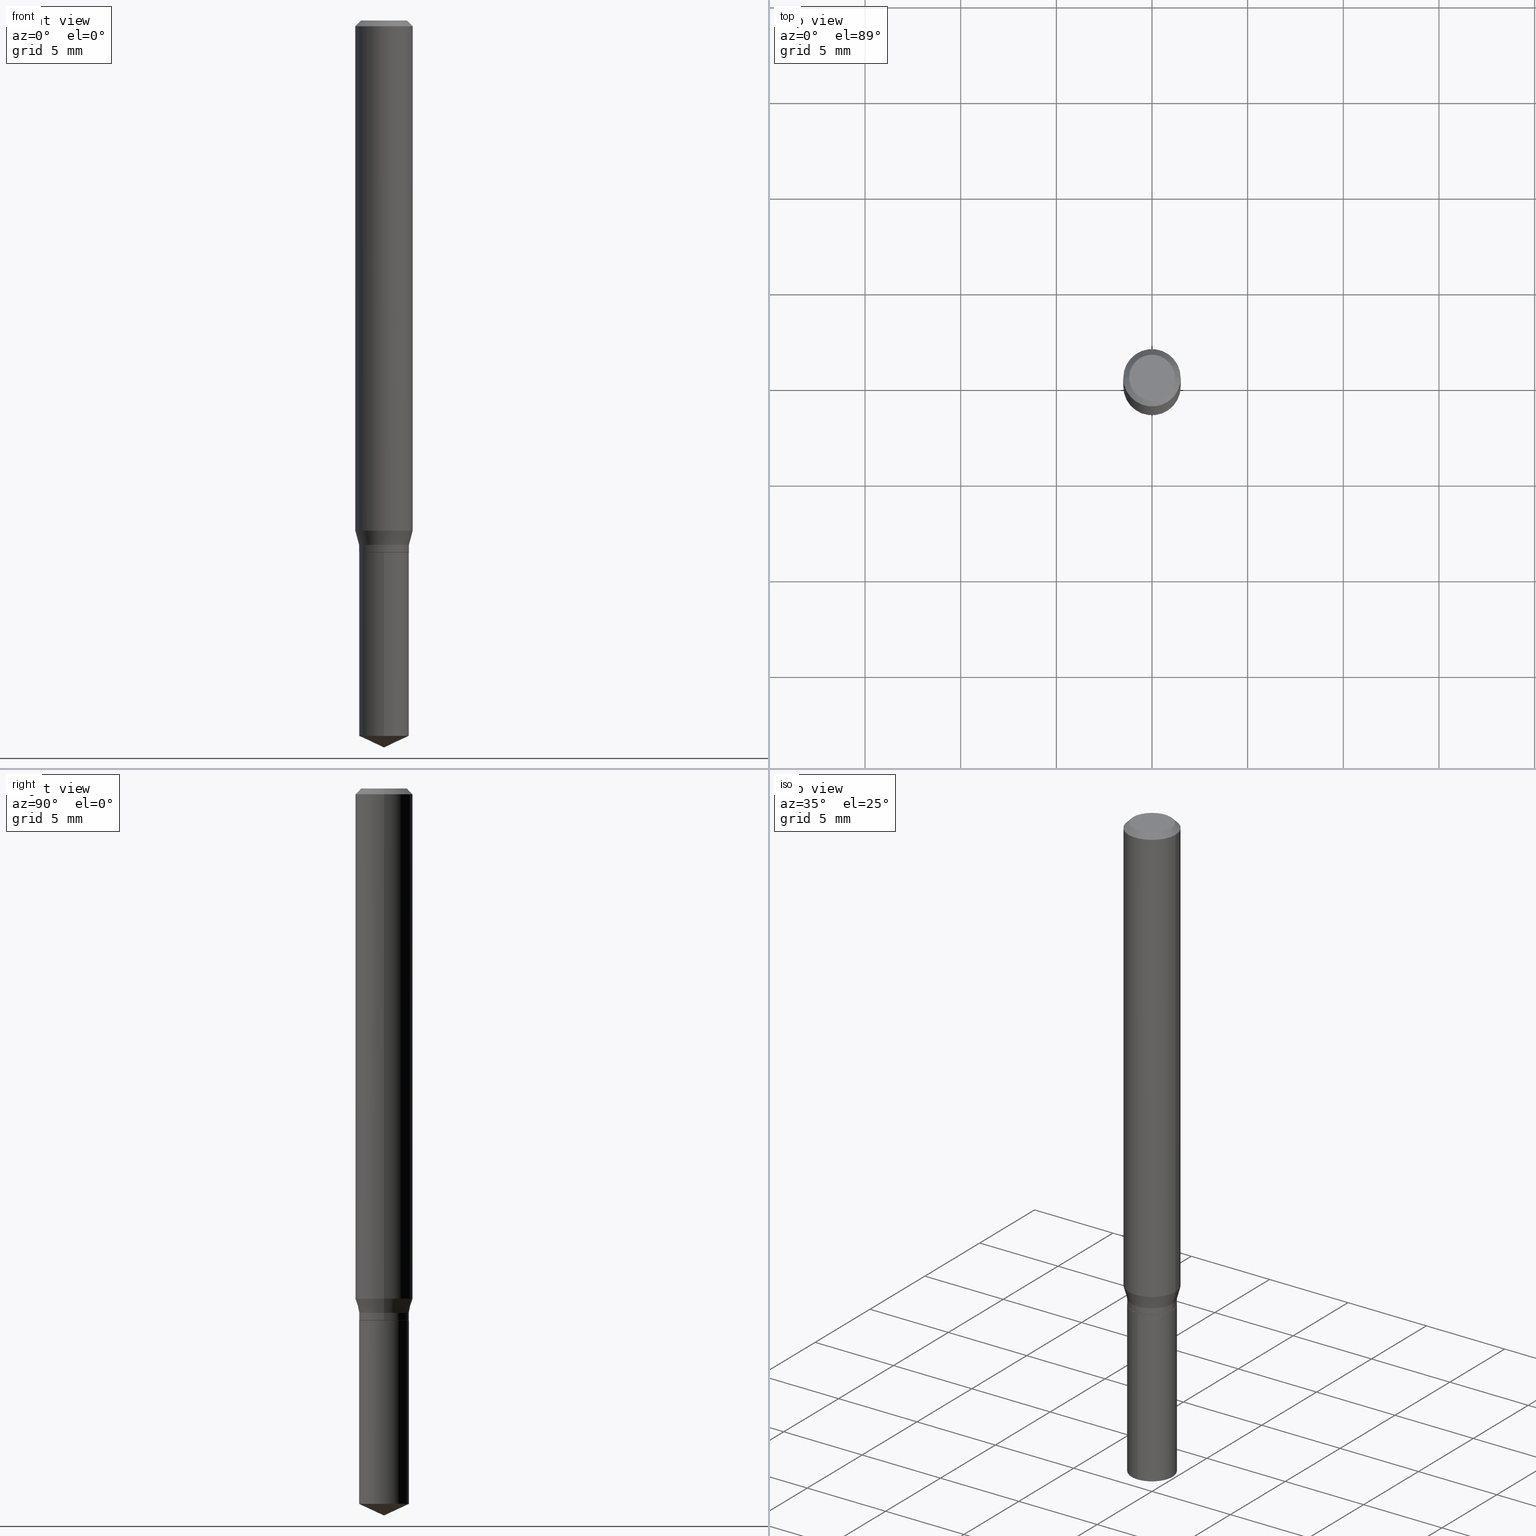
[diagram: canonical four-view strip — front | top / right | iso, engineering-drawing reading convention]
A machine part, canonical four-view strip (front | top / right | iso — engineering-drawing reading convention). The complete STEP part file that produces these views, byte-faithful:
ISO-10303-21;
HEADER;
FILE_DESCRIPTION (( 'STEP AP203' ),
    '1' );
FILE_NAME ('08016.STEP',
    '2024-04-24T08:55:49',
    ( '' ),
    ( '' ),
    'SwSTEP 2.0',
    'SolidWorks 2023',
    '' );
FILE_SCHEMA (( 'CONFIG_CONTROL_DESIGN' ));
ENDSEC;

DATA;
#1 = ORIENTED_EDGE ( 'NONE', *, *, #179, .F. ) ;
#2 = EDGE_CURVE ( 'NONE', #438, #326, #418, .T. ) ;
#3 = VERTEX_POINT ( 'NONE', #79 ) ;
#4 = PERSON_AND_ORGANIZATION ( #169, #90 ) ;
#5 = DIRECTION ( 'NONE',  ( -2.445468806185136597E-29, 3.491481338843145583E-15, 1.000000000000000000 ) ) ;
#6 = CIRCLE ( 'NONE', #488, 0.05904999999999999832 ) ;
#7 = ADVANCED_FACE ( 'NONE', ( #148 ), #306, .T. ) ;
#8 = CARTESIAN_POINT ( 'NONE',  ( 0.05904999999999999832, -4.463468013801466955E-16, -0.01181000000000007218 ) ) ;
#9 = DIRECTION ( 'NONE',  ( -6.982962677686265133E-15, -1.000000000000000000, 2.667820306312756424E-15 ) ) ;
#10 = DIRECTION ( 'NONE',  ( -2.445458899330790108E-29, 3.491495526022433205E-15, 1.000000000000000000 ) ) ;
#11 = AXIS2_PLACEMENT_3D ( 'NONE', #414, #449, #260 ) ;
#12 = LINE ( 'NONE', #156, #165 ) ;
#13 = ORIENTED_EDGE ( 'NONE', *, *, #384, .F. ) ;
#14 = EDGE_CURVE ( 'NONE', #438, #447, #233, .T. ) ;
#15 = DIRECTION ( 'NONE',  ( 1.000000000000000000, -6.982962677686266711E-15, 4.876185090822587894E-29 ) ) ;
#16 = ORIENTED_EDGE ( 'NONE', *, *, #208, .T. ) ;
#17 = DIRECTION ( 'NONE',  ( -2.445468806185136597E-29, 3.491481338843145583E-15, 1.000000000000000000 ) ) ;
#18 = ORIENTED_EDGE ( 'NONE', *, *, #149, .T. ) ;
#19 = PRODUCT ( '08016', '08016', '', ( #300 ) ) ;
#20 = CC_DESIGN_APPROVAL ( #120, ( #134 ) ) ;
#21 = UNCERTAINTY_MEASURE_WITH_UNIT (LENGTH_MEASURE( 1.000000000000000082E-05 ), #39, 'distance_accuracy_value', 'NONE');
#22 = DIRECTION ( 'NONE',  ( -2.445468806185136597E-29, 3.491481338843145583E-15, 1.000000000000000000 ) ) ;
#23 = EDGE_LOOP ( 'NONE', ( #94, #473 ) ) ;
#24 = DIRECTION ( 'NONE',  ( -2.445458899330790108E-29, 3.491495526022433205E-15, 1.000000000000000000 ) ) ;
#25 = ORIENTED_EDGE ( 'NONE', *, *, #49, .F. ) ;
#26 = DIRECTION ( 'NONE',  ( 1.000000000000000000, -6.982962677686263555E-15, 0.000000000000000000 ) ) ;
#27 = ORIENTED_EDGE ( 'NONE', *, *, #43, .T. ) ;
#28 = CONICAL_SURFACE ( 'NONE', #73, 84.42940631927434936, 1.134464013796316006 ) ;
#29 = CARTESIAN_POINT ( 'NONE',  ( 0.000000000000000000, 0.000000000000000000, 0.000000000000000000 ) ) ;
#30 = VERTEX_POINT ( 'NONE', #423 ) ;
#31 = COORDINATED_UNIVERSAL_TIME_OFFSET ( 5, 0, .BEHIND. ) ;
#32 = DIRECTION ( 'NONE',  ( -6.982962677686265133E-15, -1.000000000000000000, 2.667820306312756424E-15 ) ) ;
#33 =( NAMED_UNIT ( * ) SI_UNIT ( $, .STERADIAN. ) SOLID_ANGLE_UNIT ( ) );
#34 = ORIENTED_EDGE ( 'NONE', *, *, #302, .T. ) ;
#35 = CONICAL_SURFACE ( 'NONE', #89, 0.05120000000000000939, 0.2617993877991496299 ) ;
#36 = APPROVAL_STATUS ( 'not_yet_approved' ) ;
#37 = CC_DESIGN_DATE_AND_TIME_ASSIGNMENT ( #71, #180, ( #134 ) ) ;
#38 = PLANE ( 'NONE',  #432 ) ;
#39 =( CONVERSION_BASED_UNIT ( 'INCH', #305 ) LENGTH_UNIT ( ) NAMED_UNIT ( #451 ) );
#40 = DIRECTION ( 'NONE',  ( -2.445458899330790108E-29, 3.491495526022433205E-15, 1.000000000000000000 ) ) ;
#41 = DIRECTION ( 'NONE',  ( 0.000000000000000000, 0.000000000000000000, 1.000000000000000000 ) ) ;
#42 = VERTEX_POINT ( 'NONE', #298 ) ;
#43 = EDGE_CURVE ( 'NONE', #295, #335, #142, .T. ) ;
#44 = CARTESIAN_POINT ( 'NONE',  ( 2.567261470165268831E-29, -3.665368984606243258E-15, -1.049803401160583904 ) ) ;
#45 = DIRECTION ( 'NONE',  ( -2.445458899330790108E-29, 3.491495526022433205E-15, 1.000000000000000000 ) ) ;
#46 = COORDINATED_UNIVERSAL_TIME_OFFSET ( 5, 0, .BEHIND. ) ;
#47 = DIRECTION ( 'NONE',  ( 1.000000000000000000, -6.982962677686265133E-15, 0.000000000000000000 ) ) ;
#48 = FACE_OUTER_BOUND ( 'NONE', #350, .T. ) ;
#49 = EDGE_CURVE ( 'NONE', #295, #358, #78, .T. ) ;
#50 = CIRCLE ( 'NONE', #458, 0.05120000000000000939 ) ;
#51 = LOCAL_TIME ( 4, 55, 49.00000000000000000, #183 ) ;
#52 = PLANE ( 'NONE',  #401 ) ;
#53 = ADVANCED_FACE ( 'NONE', ( #459 ), #125, .T. ) ;
#54 = CYLINDRICAL_SURFACE ( 'NONE', #478, 0.05120000000000000939 ) ;
#55 = DIRECTION ( 'NONE',  ( -2.445468806185136597E-29, 3.491481338843145583E-15, 1.000000000000000000 ) ) ;
#56 = ORIENTED_EDGE ( 'NONE', *, *, #254, .F. ) ;
#57 = AXIS2_PLACEMENT_3D ( 'NONE', #320, #465, #469 ) ;
#58 = PERSON_AND_ORGANIZATION ( #169, #90 ) ;
#59 = PERSON_AND_ORGANIZATION ( #169, #90 ) ;
#60 = CARTESIAN_POINT ( 'NONE',  ( 3.658672935554494692E-29, -5.223595400746700193E-15, -1.496099999999999985 ) ) ;
#61 = VERTEX_POINT ( 'NONE', #230 ) ;
#62 = CARTESIAN_POINT ( 'NONE',  ( 0.000000000000000000, 0.000000000000000000, 0.000000000000000000 ) ) ;
#63 = ORIENTED_EDGE ( 'NONE', *, *, #85, .T. ) ;
#64 = FACE_OUTER_BOUND ( 'NONE', #151, .T. ) ;
#65 = ADVANCED_FACE ( 'NONE', ( #450 ), #417, .T. ) ;
#66 = EDGE_LOOP ( 'NONE', ( #101, #136, #477 ) ) ;
#67 = APPLICATION_PROTOCOL_DEFINITION ( 'international standard', 'config_control_design', 1994, #259 ) ;
#68 = ORIENTED_EDGE ( 'NONE', *, *, #349, .T. ) ;
#69 = CARTESIAN_POINT ( 'NONE',  ( -0.05070000000000000201, -3.458531931159340616E-15, -1.094500000000000028 ) ) ;
#70 = CARTESIAN_POINT ( 'NONE',  ( 2.676565608369631794E-29, -3.821426325363822773E-15, -1.094499999999999806 ) ) ;
#71 = DATE_AND_TIME ( #74, #344 ) ;
#72 = CARTESIAN_POINT ( 'NONE',  ( 0.000000000000000000, 0.000000000000000000, 0.000000000000000000 ) ) ;
#73 = AXIS2_PLACEMENT_3D ( 'NONE', #318, #10, #359 ) ;
#74 = CALENDAR_DATE ( 2024, 24, 4 ) ;
#75 = LOCAL_TIME ( 4, 55, 49.00000000000000000, #154 ) ;
#76 = DIRECTION ( 'NONE',  ( 6.982962677686265922E-15, 1.000000000000000000, -3.491495526022433599E-15 ) ) ;
#77 = DIRECTION ( 'NONE',  ( -0.2588190451025209615, 5.211531920934547097E-15, 0.9659258262890682012 ) ) ;
#78 = LINE ( 'NONE', #486, #163 ) ;
#79 = CARTESIAN_POINT ( 'NONE',  ( 0.04724000000000000421, -3.852183633974369345E-16, -3.380025165621689721E-19 ) ) ;
#80 = PERSON_AND_ORGANIZATION ( #169, #90 ) ;
#81 = AXIS2_PLACEMENT_3D ( 'NONE', #381, #40, #431 ) ;
#82 = AXIS2_PLACEMENT_3D ( 'NONE', #370, #441, #325 ) ;
#83 = FACE_OUTER_BOUND ( 'NONE', #329, .T. ) ;
#84 = DIRECTION ( 'NONE',  ( -2.445458899330790108E-29, 3.491495526022433599E-15, 1.000000000000000000 ) ) ;
#85 = EDGE_CURVE ( 'NONE', #382, #295, #116, .T. ) ;
#86 = DIRECTION ( 'NONE',  ( -2.445468806185136597E-29, 3.491481338843145583E-15, 1.000000000000000000 ) ) ;
#87 = FACE_OUTER_BOUND ( 'NONE', #145, .T. ) ;
#88 = CLOSED_SHELL ( 'NONE', ( #247, #199, #413, #7, #104 ) ) ;
#89 = AXIS2_PLACEMENT_3D ( 'NONE', #205, #480, #170 ) ;
#90 = ORGANIZATION ( 'UNSPECIFIED', 'UNSPECIFIED', '' ) ;
#91 = LINE ( 'NONE', #253, #433 ) ;
#92 = EDGE_CURVE ( 'NONE', #326, #382, #387, .T. ) ;
#93 = CARTESIAN_POINT ( 'NONE',  ( -0.05905000000000013016, -3.245793499139903371E-15, -1.049803401160583904 ) ) ;
#94 = ORIENTED_EDGE ( 'NONE', *, *, #312, .F. ) ;
#95 = CYLINDRICAL_SURFACE ( 'NONE', #192, 0.05120000000000000939 ) ;
#96 = ORIENTED_EDGE ( 'NONE', *, *, #92, .T. ) ;
#97 = CONICAL_SURFACE ( 'NONE', #409, 0.05120000000000000939, 0.2617993877991496299 ) ;
#98 = CARTESIAN_POINT ( 'NONE',  ( -9.261924752013118283E-28, 1.322368428517963298E-13, 37.87397874015748300 ) ) ;
#99 = ORIENTED_EDGE ( 'NONE', *, *, #282, .F. ) ;
#100 = DIRECTION ( 'NONE',  ( -2.445468806185136877E-29, 3.491481338843145188E-15, 1.000000000000000000 ) ) ;
#101 = ORIENTED_EDGE ( 'NONE', *, *, #208, .F. ) ;
#102 = DATE_AND_TIME ( #420, #75 ) ;
#103 = ORIENTED_EDGE ( 'NONE', *, *, #228, .T. ) ;
#104 = ADVANCED_FACE ( 'NONE', ( #155 ), #38, .F. ) ;
#105 = CONICAL_SURFACE ( 'NONE', #57, 0.05070000000000000201, 0.7853981633972775267 ) ;
#106 = AXIS2_PLACEMENT_3D ( 'NONE', #139, #188, #445 ) ;
#107 =( LENGTH_UNIT ( ) NAMED_UNIT ( * ) SI_UNIT ( $, .METRE. ) );
#108 = CARTESIAN_POINT ( 'NONE',  ( 0.05120000000000000939, -4.125185201843175438E-15, -1.079099999999999948 ) ) ;
#109 = CARTESIAN_POINT ( 'NONE',  ( 2.888098660104664204E-31, -4.123439461173780263E-17, -0.01181000000000007218 ) ) ;
#110 = DATE_AND_TIME ( #147, #308 ) ;
#111 = CARTESIAN_POINT ( 'NONE',  ( 2.676565608369631794E-29, -3.821426325363822773E-15, -1.094499999999999806 ) ) ;
#112 = VECTOR ( 'NONE', #194, 39.37007874015748143 ) ;
#113 = EDGE_CURVE ( 'NONE', #30, #412, #297, .T. ) ;
#114 = PERSON_AND_ORGANIZATION ( #169, #90 ) ;
#115 = ORIENTED_EDGE ( 'NONE', *, *, #254, .T. ) ;
#116 = LINE ( 'NONE', #108, #322 ) ;
#117 = DIRECTION ( 'NONE',  ( -2.445468806185136597E-29, 3.491481338843145583E-15, 1.000000000000000000 ) ) ;
#118 = CARTESIAN_POINT ( 'NONE',  ( -3.575276890975009060E-16, -0.05120000000000516499, -1.472225047902463890 ) ) ;
#119 = LOCAL_TIME ( 4, 55, 49.00000000000000000, #46 ) ;
#120 = APPROVAL ( #263, 'UNSPECIFIED' ) ;
#121 = CARTESIAN_POINT ( 'NONE',  ( 2.676565608369632355E-29, -3.821426325363822773E-15, -1.094500000000000028 ) ) ;
#122 = DIRECTION ( 'NONE',  ( -2.445468806185136597E-29, 3.491481338843145583E-15, 1.000000000000000000 ) ) ;
#123 = CALENDAR_DATE ( 2024, 24, 4 ) ;
#124 = DIRECTION ( 'NONE',  ( -2.445468806185136597E-29, 3.491481338843145583E-15, 1.000000000000000000 ) ) ;
#125 = CONICAL_SURFACE ( 'NONE', #217, 0.05904999999999999832, 0.7853981633974452814 ) ;
#126 = VECTOR ( 'NONE', #100, 39.37007874015748143 ) ;
#127 = PRODUCT_DEFINITION_FORMATION_WITH_SPECIFIED_SOURCE ( 'ANY', '', #19, .NOT_KNOWN. ) ;
#128 = CARTESIAN_POINT ( 'NONE',  ( -0.04724000000000000421, 3.504923541997677355E-16, -3.380025165670481712E-19 ) ) ;
#129 = ORIENTED_EDGE ( 'NONE', *, *, #397, .F. ) ;
#130 = CARTESIAN_POINT ( 'NONE',  ( 2.638905388754380459E-29, -3.767657512745638097E-15, -1.079099999999999948 ) ) ;
#131 = VERTEX_POINT ( 'NONE', #118 ) ;
#132 = CARTESIAN_POINT ( 'NONE',  ( 2.888098660104664204E-31, -4.123439461173780263E-17, -0.01181000000000007218 ) ) ;
#133 = ORIENTED_EDGE ( 'NONE', *, *, #179, .T. ) ;
#134 = PRODUCT_DEFINITION ( 'UNKNOWN', '', #127, #327 ) ;
#135 = LINE ( 'NONE', #330, #126 ) ;
#136 = ORIENTED_EDGE ( 'NONE', *, *, #324, .T. ) ;
#137 = CARTESIAN_POINT ( 'NONE',  ( 2.676565608369632355E-29, -3.821426325363822773E-15, -1.094500000000000028 ) ) ;
#138 = ORIENTED_EDGE ( 'NONE', *, *, #113, .T. ) ;
#139 = CARTESIAN_POINT ( 'NONE',  ( 8.265746106709734507E-48, -1.180129479067563789E-33, -3.380025165646692144E-19 ) ) ;
#140 = PRODUCT_RELATED_PRODUCT_CATEGORY ( 'detail', '', ( #19 ) ) ;
#141 = ORIENTED_EDGE ( 'NONE', *, *, #430, .T. ) ;
#142 = CIRCLE ( 'NONE', #487, 0.05905000000000013016 ) ;
#143 = CC_DESIGN_SECURITY_CLASSIFICATION ( #193, ( #127 ) ) ;
#144 = DIRECTION ( 'NONE',  ( 1.000000000000000000, 0.000000000000000000, 0.000000000000000000 ) ) ;
#145 = EDGE_LOOP ( 'NONE', ( #408, #103, #376, #99 ) ) ;
#146 = SHAPE_DEFINITION_REPRESENTATION ( #362, #203 ) ;
#147 = CALENDAR_DATE ( 2024, 24, 4 ) ;
#148 = FACE_OUTER_BOUND ( 'NONE', #348, .T. ) ;
#149 = EDGE_CURVE ( 'NONE', #3, #340, #204, .T. ) ;
#150 = DIRECTION ( 'NONE',  ( 1.000000000000000000, -6.982962677686263555E-15, 0.000000000000000000 ) ) ;
#151 = EDGE_LOOP ( 'NONE', ( #369, #16, #1 ) ) ;
#152 = ADVANCED_FACE ( 'NONE', ( #231 ), #385, .F. ) ;
#153 = CIRCLE ( 'NONE', #82, 0.05120000000000000939 ) ;
#154 = COORDINATED_UNIVERSAL_TIME_OFFSET ( 5, 0, .BEHIND. ) ;
#155 = FACE_OUTER_BOUND ( 'NONE', #160, .T. ) ;
#156 = CARTESIAN_POINT ( 'NONE',  ( 0.05070000000000000201, -4.175462533122516319E-15, -1.094500000000000028 ) ) ;
#157 = DIRECTION ( 'NONE',  ( 0.7071067811865453523, -7.319954787623248157E-15, -0.7071067811865496822 ) ) ;
#158 = LINE ( 'NONE', #392, #112 ) ;
#159 = CARTESIAN_POINT ( 'NONE',  ( 2.676565608369632355E-29, -3.821426325363822773E-15, -1.094500000000000028 ) ) ;
#160 = EDGE_LOOP ( 'NONE', ( #115, #138 ) ) ;
#161 = DIRECTION ( 'NONE',  ( -2.445458899330790108E-29, 3.491495526022433205E-15, 1.000000000000000000 ) ) ;
#162 = APPROVAL ( #36, 'UNSPECIFIED' ) ;
#163 = VECTOR ( 'NONE', #455, 39.37007874015748143 ) ;
#164 = DIRECTION ( 'NONE',  ( 1.000000000000000000, -6.982962677686263555E-15, 0.000000000000000000 ) ) ;
#165 = VECTOR ( 'NONE', #278, 39.37007874015748143 ) ;
#166 = EDGE_LOOP ( 'NONE', ( #246, #18 ) ) ;
#167 = CARTESIAN_POINT ( 'NONE',  ( -0.05905000000000006771, 4.195754854663396409E-16, -2.904631170795525045E-30 ) ) ;
#168 = EDGE_LOOP ( 'NONE', ( #27, #372, #292, #25 ) ) ;
#169 = PERSON ( 'UNSPECIFIED', 'UNSPECIFIED', 'UNSPECIFIED', ('UNSPECIFIED'), ('UNSPECIFIED'), ('UNSPECIFIED') ) ;
#170 = DIRECTION ( 'NONE',  ( 1.000000000000000000, -6.982962677686263555E-15, 0.000000000000000000 ) ) ;
#171 = EDGE_CURVE ( 'NONE', #335, #295, #225, .T. ) ;
#172 = ORIENTED_EDGE ( 'NONE', *, *, #228, .F. ) ;
#173 = DIRECTION ( 'NONE',  ( 2.445468806185136597E-29, -3.491481338843145583E-15, -1.000000000000000000 ) ) ;
#174 = ORIENTED_EDGE ( 'NONE', *, *, #113, .F. ) ;
#175 = VECTOR ( 'NONE', #396, 39.37007874015748143 ) ;
#176 = CC_DESIGN_APPROVAL ( #162, ( #127 ) ) ;
#177 = DIRECTION ( 'NONE',  ( -2.445468806185136877E-29, 3.491481338843145188E-15, 1.000000000000000000 ) ) ;
#178 = VERTEX_POINT ( 'NONE', #196 ) ;
#179 = EDGE_CURVE ( 'NONE', #178, #131, #50, .T. ) ;
#180 = DATE_TIME_ROLE ( 'creation_date' ) ;
#181 = DIRECTION ( 'NONE',  ( 1.000000000000000000, -6.982962677686265133E-15, 0.000000000000000000 ) ) ;
#182 = ORIENTED_EDGE ( 'NONE', *, *, #2, .T. ) ;
#183 = COORDINATED_UNIVERSAL_TIME_OFFSET ( 5, 0, .BEHIND. ) ;
#184 = VECTOR ( 'NONE', #268, 39.37007874015748143 ) ;
#185 = VECTOR ( 'NONE', #467, 39.37007874015748143 ) ;
#186 = APPROVAL_ROLE ( '' ) ;
#187 = ORIENTED_EDGE ( 'NONE', *, *, #466, .T. ) ;
#188 = DIRECTION ( 'NONE',  ( -2.445468806185136597E-29, 3.491481338843145583E-15, 1.000000000000000000 ) ) ;
#189 = ORIENTED_EDGE ( 'NONE', *, *, #43, .F. ) ;
#190 = APPROVAL_ROLE ( '' ) ;
#191 = DIRECTION ( 'NONE',  ( -2.445468806185136597E-29, 3.491481338843145583E-15, 1.000000000000000000 ) ) ;
#192 = AXIS2_PLACEMENT_3D ( 'NONE', #62, #328, #337 ) ;
#193 = SECURITY_CLASSIFICATION ( '', '', #270 ) ;
#194 = DIRECTION ( 'NONE',  ( -0.7071067811864267805, 7.493145998869918709E-15, 0.7071067811866682540 ) ) ;
#195 = EDGE_CURVE ( 'NONE', #475, #42, #279, .T. ) ;
#196 = CARTESIAN_POINT ( 'NONE',  ( 3.637978807092074523E-16, 0.05119999999999487461, -1.472225047902464334 ) ) ;
#197 = FACE_OUTER_BOUND ( 'NONE', #66, .T. ) ;
#198 = CARTESIAN_POINT ( 'NONE',  ( 2.676565608369631794E-29, -3.821426325363822773E-15, -1.094499999999999806 ) ) ;
#199 = ADVANCED_FACE ( 'NONE', ( #197 ), #28, .T. ) ;
#200 = DIRECTION ( 'NONE',  ( 1.000000000000000000, -6.982962677686265922E-15, 4.876176775795935793E-29 ) ) ;
#201 = CC_DESIGN_PERSON_AND_ORGANIZATION_ASSIGNMENT ( #59, #213, ( #193 ) ) ;
#202 = FACE_OUTER_BOUND ( 'NONE', #406, .T. ) ;
#203 = ADVANCED_BREP_SHAPE_REPRESENTATION ( '08016', ( #425, #262, #288 ), #258 ) ;
#204 = CIRCLE ( 'NONE', #274, 0.04724000000000000421 ) ;
#205 = CARTESIAN_POINT ( 'NONE',  ( 2.638905388754380459E-29, -3.767657512745638097E-15, -1.079099999999999948 ) ) ;
#206 = CONICAL_SURFACE ( 'NONE', #411, 84.42940631927434936, 1.134464013796316006 ) ;
#207 = ORIENTED_EDGE ( 'NONE', *, *, #272, .T. ) ;
#208 = EDGE_CURVE ( 'NONE', #61, #131, #424, .T. ) ;
#209 = CARTESIAN_POINT ( 'NONE',  ( -3.575276890975101258E-16, -0.05120000000000383272, -1.094499999999999806 ) ) ;
#210 = ORIENTED_EDGE ( 'NONE', *, *, #171, .F. ) ;
#211 = DIRECTION ( 'NONE',  ( -1.000000000000000000, 6.982962677686266711E-15, 0.000000000000000000 ) ) ;
#212 = ORIENTED_EDGE ( 'NONE', *, *, #282, .T. ) ;
#213 = PERSON_AND_ORGANIZATION_ROLE ( 'classification_officer' ) ;
#214 = DIRECTION ( 'NONE',  ( -6.982962677686266711E-15, -1.000000000000000000, 3.520397390770453475E-15 ) ) ;
#215 = APPLICATION_CONTEXT ( 'configuration controlled 3d designs of mechanical parts and assemblies' ) ;
#216 = EDGE_LOOP ( 'NONE', ( #257, #187, #189, #489 ) ) ;
#217 = AXIS2_PLACEMENT_3D ( 'NONE', #109, #264, #229 ) ;
#218 = EDGE_CURVE ( 'NONE', #340, #393, #276, .T. ) ;
#219 = PERSON_AND_ORGANIZATION ( #169, #90 ) ;
#220 = ORIENTED_EDGE ( 'NONE', *, *, #218, .F. ) ;
#221 = DIRECTION ( 'NONE',  ( -2.445468806185136597E-29, 3.491481338843145583E-15, 1.000000000000000000 ) ) ;
#222 = DIRECTION ( 'NONE',  ( 1.000000000000000000, -6.982962677686263555E-15, 0.000000000000000000 ) ) ;
#223 = CARTESIAN_POINT ( 'NONE',  ( 0.000000000000000000, 0.000000000000000000, 0.000000000000000000 ) ) ;
#224 = DIRECTION ( 'NONE',  ( 1.000000000000000000, -6.982962677686266711E-15, 4.876176775795936353E-29 ) ) ;
#225 = CIRCLE ( 'NONE', #323, 0.05905000000000013016 ) ;
#226 = VECTOR ( 'NONE', #284, 39.37007874015748854 ) ;
#227 = PERSON_AND_ORGANIZATION ( #169, #90 ) ;
#228 = EDGE_CURVE ( 'NONE', #475, #438, #158, .T. ) ;
#229 = DIRECTION ( 'NONE',  ( -1.000000000000000000, 6.982962677686266711E-15, 0.000000000000000000 ) ) ;
#230 = CARTESIAN_POINT ( 'NONE',  ( 3.658651059288794515E-29, -5.223626456482161457E-15, -1.496099999999999985 ) ) ;
#231 = FACE_OUTER_BOUND ( 'NONE', #166, .T. ) ;
#232 = CC_DESIGN_DATE_AND_TIME_ASSIGNMENT ( #383, #386, ( #193 ) ) ;
#233 = CIRCLE ( 'NONE', #256, 0.05120000000000000939 ) ;
#234 = CONICAL_SURFACE ( 'NONE', #394, 0.05070000000000000201, 0.7853981633972775267 ) ;
#235 = AXIS2_PLACEMENT_3D ( 'NONE', #296, #221, #150 ) ;
#236 = CYLINDRICAL_SURFACE ( 'NONE', #356, 0.05120000000000000939 ) ;
#237 = PERSON_AND_ORGANIZATION_ROLE ( 'creator' ) ;
#238 = DIRECTION ( 'NONE',  ( -2.445458899330790108E-29, 3.491495526022433205E-15, 1.000000000000000000 ) ) ;
#239 = ADVANCED_FACE ( 'NONE', ( #83 ), #105, .T. ) ;
#240 = DIRECTION ( 'NONE',  ( 1.000000000000000000, -6.982962677686263555E-15, 0.000000000000000000 ) ) ;
#241 = DIRECTION ( 'NONE',  ( 1.000000000000000000, -6.982962677686263555E-15, 0.000000000000000000 ) ) ;
#242 = APPROVAL_PERSON_ORGANIZATION ( #377, #162, #186 ) ;
#243 = ADVANCED_FACE ( 'NONE', ( #87 ), #234, .T. ) ;
#244 = DIRECTION ( 'NONE',  ( -2.445468806185136597E-29, 3.491481338843145583E-15, 1.000000000000000000 ) ) ;
#245 = FACE_OUTER_BOUND ( 'NONE', #255, .T. ) ;
#246 = ORIENTED_EDGE ( 'NONE', *, *, #490, .T. ) ;
#247 = ADVANCED_FACE ( 'NONE', ( #48 ), #236, .T. ) ;
#248 = AXIS2_PLACEMENT_3D ( 'NONE', #378, #5, #415 ) ;
#249 = FACE_OUTER_BOUND ( 'NONE', #283, .T. ) ;
#250 = ORIENTED_EDGE ( 'NONE', *, *, #49, .T. ) ;
#251 = CARTESIAN_POINT ( 'NONE',  ( 2.888098660104664204E-31, -4.123439461173780263E-17, -0.01181000000000007218 ) ) ;
#252 = ORIENTED_EDGE ( 'NONE', *, *, #2, .F. ) ;
#253 = CARTESIAN_POINT ( 'NONE',  ( -3.575276890975101258E-16, -0.05120000000000383272, -1.094499999999999806 ) ) ;
#254 = EDGE_CURVE ( 'NONE', #412, #30, #351, .T. ) ;
#255 = EDGE_LOOP ( 'NONE', ( #252, #346, #365, #367 ) ) ;
#256 = AXIS2_PLACEMENT_3D ( 'NONE', #303, #452, #222 ) ;
#257 = ORIENTED_EDGE ( 'NONE', *, *, #390, .T. ) ;
#258 =( GEOMETRIC_REPRESENTATION_CONTEXT ( 3 ) GLOBAL_UNCERTAINTY_ASSIGNED_CONTEXT ( ( #21 ) ) GLOBAL_UNIT_ASSIGNED_CONTEXT ( ( #39, #347, #33 ) ) REPRESENTATION_CONTEXT ( 'NONE', 'WORKASPACE' ) );
#259 = APPLICATION_CONTEXT ( 'configuration controlled 3d designs of mechanical parts and assemblies' ) ;
#260 = DIRECTION ( 'NONE',  ( 1.000000000000000000, -6.982962677686266711E-15, 4.876176775795936353E-29 ) ) ;
#261 = DIRECTION ( 'NONE',  ( 0.2588190451025209615, 1.565188264969624926E-15, 0.9659258262890682012 ) ) ;
#262 = MANIFOLD_SOLID_BREP ( 'Body-Move/Copy2[2]', #307 ) ;
#263 = APPROVAL_STATUS ( 'not_yet_approved' ) ;
#264 = DIRECTION ( 'NONE',  ( 2.445468806185136597E-29, -3.491481338843145583E-15, -1.000000000000000000 ) ) ;
#265 = APPROVAL_DATE_TIME ( #110, #162 ) ;
#266 = DIRECTION ( 'NONE',  ( 2.445458899330789267E-29, -3.491495526022433599E-15, -1.000000000000000000 ) ) ;
#267 = CIRCLE ( 'NONE', #314, 0.05120000000000000939 ) ;
#268 = DIRECTION ( 'NONE',  ( -2.445468806185136877E-29, 3.491481338843145188E-15, 1.000000000000000000 ) ) ;
#269 = APPROVAL_DATE_TIME ( #304, #360 ) ;
#270 = SECURITY_CLASSIFICATION_LEVEL ( 'unclassified' ) ;
#271 = ORIENTED_EDGE ( 'NONE', *, *, #484, .T. ) ;
#272 = EDGE_CURVE ( 'NONE', #3, #358, #389, .T. ) ;
#273 = DIRECTION ( 'NONE',  ( 2.438088387897960049E-29, -3.491481338843145188E-15, -1.000000000000000000 ) ) ;
#274 = AXIS2_PLACEMENT_3D ( 'NONE', #460, #122, #15 ) ;
#275 = CARTESIAN_POINT ( 'NONE',  ( 3.637978807091980353E-16, 0.05119999999999617912, -1.094500000000000028 ) ) ;
#276 = LINE ( 'NONE', #354, #185 ) ;
#277 = CC_DESIGN_PERSON_AND_ORGANIZATION_ASSIGNMENT ( #58, #336, ( #127 ) ) ;
#278 = DIRECTION ( 'NONE',  ( 0.7071067811864267805, -2.468850131080992517E-15, 0.7071067811866682540 ) ) ;
#279 = CIRCLE ( 'NONE', #287, 0.05070000000000000201 ) ;
#280 = DIRECTION ( 'NONE',  ( -1.000000000000000000, 6.982962677686265922E-15, -4.876176775795935793E-29 ) ) ;
#281 = DIRECTION ( 'NONE',  ( -2.445468806185136597E-29, 3.491481338843145583E-15, 1.000000000000000000 ) ) ;
#282 = EDGE_CURVE ( 'NONE', #42, #447, #12, .T. ) ;
#283 = EDGE_LOOP ( 'NONE', ( #129, #481, #250, #13 ) ) ;
#284 = DIRECTION ( 'NONE',  ( 6.439704144417030353E-15, 0.9063077870366521571, 0.4226182617406946673 ) ) ;
#285 = ORIENTED_EDGE ( 'NONE', *, *, #149, .F. ) ;
#286 = CYLINDRICAL_SURFACE ( 'NONE', #11, 0.05905000000000006771 ) ;
#287 = AXIS2_PLACEMENT_3D ( 'NONE', #159, #117, #240 ) ;
#288 = AXIS2_PLACEMENT_3D ( 'NONE', #223, #41, #144 ) ;
#289 = ORIENTED_EDGE ( 'NONE', *, *, #466, .F. ) ;
#290 = ADVANCED_FACE ( 'NONE', ( #434 ), #52, .F. ) ;
#291 = DIRECTION ( 'NONE',  ( 1.000000000000000000, -6.982962677686267499E-15, 4.876176775795935232E-29 ) ) ;
#292 = ORIENTED_EDGE ( 'NONE', *, *, #430, .F. ) ;
#293 = CC_DESIGN_PERSON_AND_ORGANIZATION_ASSIGNMENT ( #219, #373, ( #134 ) ) ;
#294 = LINE ( 'NONE', #167, #363 ) ;
#295 = VERTEX_POINT ( 'NONE', #310 ) ;
#296 = CARTESIAN_POINT ( 'NONE',  ( 2.675342873966538993E-29, -3.819680584694400481E-15, -1.093999999999999861 ) ) ;
#297 = CIRCLE ( 'NONE', #81, 0.05120000000000000939 ) ;
#298 = CARTESIAN_POINT ( 'NONE',  ( 0.05070000000000000201, -4.175462533122516319E-15, -1.094500000000000028 ) ) ;
#299 = CONICAL_SURFACE ( 'NONE', #419, 0.05904999999999999832, 0.7853981633974452814 ) ;
#300 = MECHANICAL_CONTEXT ( 'NONE', #259, 'mechanical' ) ;
#301 = CARTESIAN_POINT ( 'NONE',  ( -0.05120000000000000939, 3.637978807091713619E-16, -2.518494766210512278E-30 ) ) ;
#302 = EDGE_CURVE ( 'NONE', #178, #30, #391, .T. ) ;
#303 = CARTESIAN_POINT ( 'NONE',  ( 2.675342873966538993E-29, -3.819680584694400481E-15, -1.093999999999999861 ) ) ;
#304 = DATE_AND_TIME ( #422, #51 ) ;
#305 = LENGTH_MEASURE_WITH_UNIT ( LENGTH_MEASURE( 0.02539999999999999897 ), #107 );
#306 = CYLINDRICAL_SURFACE ( 'NONE', #470, 0.05120000000000000939 ) ;
#307 = CLOSED_SHELL ( 'NONE', ( #243, #332, #65, #446, #427, #352, #317, #453, #53, #152, #290, #239 ) ) ;
#308 = LOCAL_TIME ( 4, 55, 49.00000000000000000, #345 ) ;
#309 = DIRECTION ( 'NONE',  ( -2.445468806185136597E-29, 3.491481338843145583E-15, 1.000000000000000000 ) ) ;
#310 = CARTESIAN_POINT ( 'NONE',  ( 0.05905000000000013016, -4.077712930723618179E-15, -1.049803401160583904 ) ) ;
#311 = CARTESIAN_POINT ( 'NONE',  ( 6.174816162826660585E-30, -6.770151797815041706E-15, -1.094500000000000028 ) ) ;
#312 = EDGE_CURVE ( 'NONE', #42, #475, #371, .T. ) ;
#313 = AXIS2_PLACEMENT_3D ( 'NONE', #72, #191, #224 ) ;
#314 = AXIS2_PLACEMENT_3D ( 'NONE', #368, #55, #364 ) ;
#315 = APPROVAL_PERSON_ORGANIZATION ( #80, #360, #190 ) ;
#316 = CARTESIAN_POINT ( 'NONE',  ( 3.600276688262861312E-29, -5.140251640181885643E-15, -1.472225047902464112 ) ) ;
#317 = ADVANCED_FACE ( 'NONE', ( #366 ), #35, .T. ) ;
#318 = CARTESIAN_POINT ( 'NONE',  ( -9.261924752013118283E-28, 1.322368428517963298E-13, 37.87397874015748300 ) ) ;
#319 = EDGE_LOOP ( 'NONE', ( #442, #342, #462, #321 ) ) ;
#320 = CARTESIAN_POINT ( 'NONE',  ( 2.676565608369632355E-29, -3.821426325363822773E-15, -1.094500000000000028 ) ) ;
#321 = ORIENTED_EDGE ( 'NONE', *, *, #384, .T. ) ;
#322 = VECTOR ( 'NONE', #261, 39.37007874015748143 ) ;
#323 = AXIS2_PLACEMENT_3D ( 'NONE', #44, #86, #47 ) ;
#324 = EDGE_CURVE ( 'NONE', #61, #178, #403, .T. ) ;
#325 = DIRECTION ( 'NONE',  ( -6.982962677686265133E-15, -1.000000000000000000, 5.335640612625512847E-15 ) ) ;
#326 = VERTEX_POINT ( 'NONE', #333 ) ;
#327 = DESIGN_CONTEXT ( 'detailed design', #215, 'design' ) ;
#328 = DIRECTION ( 'NONE',  ( -2.445468806185136597E-29, 3.491481338843145583E-15, 1.000000000000000000 ) ) ;
#329 = EDGE_LOOP ( 'NONE', ( #172, #444, #212, #436 ) ) ;
#330 = CARTESIAN_POINT ( 'NONE',  ( 0.05120000000000000939, -3.575276890975369471E-16, 2.496602509207519384E-30 ) ) ;
#331 = ORIENTED_EDGE ( 'NONE', *, *, #302, .F. ) ;
#332 = ADVANCED_FACE ( 'NONE', ( #398 ), #299, .T. ) ;
#333 = CARTESIAN_POINT ( 'NONE',  ( -0.05120000000000000939, -3.429871168010848223E-15, -1.079099999999999948 ) ) ;
#334 = AXIS2_PLACEMENT_3D ( 'NONE', #428, #238, #9 ) ;
#335 = VERTEX_POINT ( 'NONE', #93 ) ;
#336 = PERSON_AND_ORGANIZATION_ROLE ( 'design_supplier' ) ;
#337 = DIRECTION ( 'NONE',  ( 1.000000000000000000, -6.982962677686267499E-15, 4.876176775795935232E-29 ) ) ;
#338 = EDGE_LOOP ( 'NONE', ( #285, #207, #141, #220 ) ) ;
#339 = APPLICATION_PROTOCOL_DEFINITION ( 'international standard', 'config_control_design', 1994, #215 ) ;
#340 = VERTEX_POINT ( 'NONE', #128 ) ;
#341 = EDGE_CURVE ( 'NONE', #447, #382, #135, .T. ) ;
#342 = ORIENTED_EDGE ( 'NONE', *, *, #490, .F. ) ;
#343 = AXIS2_PLACEMENT_3D ( 'NONE', #482, #22, #435 ) ;
#344 = LOCAL_TIME ( 4, 55, 49.00000000000000000, #31 ) ;
#345 = COORDINATED_UNIVERSAL_TIME_OFFSET ( 5, 0, .BEHIND. ) ;
#346 = ORIENTED_EDGE ( 'NONE', *, *, #14, .T. ) ;
#347 =( NAMED_UNIT ( * ) PLANE_ANGLE_UNIT ( ) SI_UNIT ( $, .RADIAN. ) );
#348 = EDGE_LOOP ( 'NONE', ( #331, #133, #404, #174 ) ) ;
#349 = EDGE_CURVE ( 'NONE', #131, #178, #153, .T. ) ;
#350 = EDGE_LOOP ( 'NONE', ( #68, #34, #56, #483 ) ) ;
#351 = CIRCLE ( 'NONE', #334, 0.05120000000000000939 ) ;
#352 = ADVANCED_FACE ( 'NONE', ( #245 ), #54, .T. ) ;
#353 = CARTESIAN_POINT ( 'NONE',  ( 3.658651059288795076E-29, -5.223626456482161457E-15, -1.496099999999999985 ) ) ;
#354 = CARTESIAN_POINT ( 'NONE',  ( -0.05904999999999999832, 3.711095515056362547E-16, -0.01181000000000007218 ) ) ;
#355 = DIRECTION ( 'NONE',  ( -6.982962677686265133E-15, -1.000000000000000000, 5.335640612625512847E-15 ) ) ;
#356 = AXIS2_PLACEMENT_3D ( 'NONE', #198, #45, #357 ) ;
#357 = DIRECTION ( 'NONE',  ( -6.982962677686265133E-15, -1.000000000000000000, 2.667820306312756424E-15 ) ) ;
#358 = VERTEX_POINT ( 'NONE', #476 ) ;
#359 = DIRECTION ( 'NONE',  ( -6.982962677686266711E-15, -1.000000000000000000, 3.520397390770453475E-15 ) ) ;
#360 = APPROVAL ( #461, 'UNSPECIFIED' ) ;
#361 = CARTESIAN_POINT ( 'NONE',  ( -0.05120000000000000939, -3.429871168010848223E-15, -1.093999999999999861 ) ) ;
#362 = PRODUCT_DEFINITION_SHAPE ( 'NONE', 'NONE',  #134 ) ;
#363 = VECTOR ( 'NONE', #177, 39.37007874015748143 ) ;
#364 = DIRECTION ( 'NONE',  ( 1.000000000000000000, -6.982962677686263555E-15, 0.000000000000000000 ) ) ;
#365 = ORIENTED_EDGE ( 'NONE', *, *, #341, .T. ) ;
#366 = FACE_OUTER_BOUND ( 'NONE', #374, .T. ) ;
#367 = ORIENTED_EDGE ( 'NONE', *, *, #92, .F. ) ;
#368 = CARTESIAN_POINT ( 'NONE',  ( 2.638905388754380459E-29, -3.767657512745638097E-15, -1.079099999999999948 ) ) ;
#369 = ORIENTED_EDGE ( 'NONE', *, *, #324, .F. ) ;
#370 = CARTESIAN_POINT ( 'NONE',  ( 3.600276688262861312E-29, -5.140251640181885643E-15, -1.472225047902464112 ) ) ;
#371 = CIRCLE ( 'NONE', #448, 0.05070000000000000201 ) ;
#372 = ORIENTED_EDGE ( 'NONE', *, *, #397, .T. ) ;
#373 = PERSON_AND_ORGANIZATION_ROLE ( 'creator' ) ;
#374 = EDGE_LOOP ( 'NONE', ( #289, #96, #63, #210 ) ) ;
#375 = CC_DESIGN_PERSON_AND_ORGANIZATION_ASSIGNMENT ( #4, #454, ( #19 ) ) ;
#376 = ORIENTED_EDGE ( 'NONE', *, *, #484, .F. ) ;
#377 = PERSON_AND_ORGANIZATION ( #169, #90 ) ;
#378 = CARTESIAN_POINT ( 'NONE',  ( 2.638905388754380459E-29, -3.767657512745638097E-15, -1.079099999999999948 ) ) ;
#379 = CIRCLE ( 'NONE', #343, 0.05904999999999999832 ) ;
#380 = CARTESIAN_POINT ( 'NONE',  ( -0.05120000000000000939, -3.403859632036467031E-15, -1.079099999999999948 ) ) ;
#381 = CARTESIAN_POINT ( 'NONE',  ( 2.676565608369631794E-29, -3.821426325363822773E-15, -1.094499999999999806 ) ) ;
#382 = VERTEX_POINT ( 'NONE', #399 ) ;
#383 = DATE_AND_TIME ( #123, #119 ) ;
#384 = EDGE_CURVE ( 'NONE', #393, #358, #379, .T. ) ;
#385 = PLANE ( 'NONE',  #439 ) ;
#386 = DATE_TIME_ROLE ( 'classification_date' ) ;
#387 = CIRCLE ( 'NONE', #248, 0.05120000000000000939 ) ;
#388 = VECTOR ( 'NONE', #157, 39.37007874015748143 ) ;
#389 = LINE ( 'NONE', #8, #388 ) ;
#390 = EDGE_CURVE ( 'NONE', #382, #326, #267, .T. ) ;
#391 = LINE ( 'NONE', #275, #426 ) ;
#392 = CARTESIAN_POINT ( 'NONE',  ( -0.05070000000000000201, -3.461181158333452211E-15, -1.094500000000000028 ) ) ;
#393 = VERTEX_POINT ( 'NONE', #443 ) ;
#394 = AXIS2_PLACEMENT_3D ( 'NONE', #121, #124, #241 ) ;
#395 = CIRCLE ( 'NONE', #106, 0.04724000000000000421 ) ;
#396 = DIRECTION ( 'NONE',  ( -6.328713451373374901E-15, -0.9063077870366492705, 0.4226182617407009956 ) ) ;
#397 = EDGE_CURVE ( 'NONE', #335, #393, #294, .T. ) ;
#398 = FACE_OUTER_BOUND ( 'NONE', #338, .T. ) ;
#399 = CARTESIAN_POINT ( 'NONE',  ( 0.05120000000000000939, -4.125185201843175438E-15, -1.079099999999999948 ) ) ;
#400 = ORIENTED_EDGE ( 'NONE', *, *, #390, .F. ) ;
#401 = AXIS2_PLACEMENT_3D ( 'NONE', #311, #463, #200 ) ;
#402 = EDGE_CURVE ( 'NONE', #131, #412, #91, .T. ) ;
#403 = LINE ( 'NONE', #60, #226 ) ;
#404 = ORIENTED_EDGE ( 'NONE', *, *, #402, .T. ) ;
#405 = DIRECTION ( 'NONE',  ( -2.445468806185136597E-29, 3.491481338843145583E-15, 1.000000000000000000 ) ) ;
#406 = EDGE_LOOP ( 'NONE', ( #271, #182, #400, #468 ) ) ;
#407 = DIRECTION ( 'NONE',  ( -2.445458899330790108E-29, 3.491495526022433599E-15, 1.000000000000000000 ) ) ;
#408 = ORIENTED_EDGE ( 'NONE', *, *, #312, .T. ) ;
#409 = AXIS2_PLACEMENT_3D ( 'NONE', #130, #17, #164 ) ;
#410 = APPROVAL_DATE_TIME ( #102, #120 ) ;
#411 = AXIS2_PLACEMENT_3D ( 'NONE', #98, #24, #214 ) ;
#412 = VERTEX_POINT ( 'NONE', #209 ) ;
#413 = ADVANCED_FACE ( 'NONE', ( #64 ), #206, .T. ) ;
#414 = CARTESIAN_POINT ( 'NONE',  ( 0.000000000000000000, 0.000000000000000000, 0.000000000000000000 ) ) ;
#415 = DIRECTION ( 'NONE',  ( 1.000000000000000000, -6.982962677686263555E-15, 0.000000000000000000 ) ) ;
#416 = APPROVAL_ROLE ( '' ) ;
#417 = CYLINDRICAL_SURFACE ( 'NONE', #313, 0.05905000000000006771 ) ;
#418 = LINE ( 'NONE', #301, #184 ) ;
#419 = AXIS2_PLACEMENT_3D ( 'NONE', #251, #173, #211 ) ;
#420 = CALENDAR_DATE ( 2024, 24, 4 ) ;
#421 = DIRECTION ( 'NONE',  ( -2.445458899330790108E-29, 3.491495526022433205E-15, 1.000000000000000000 ) ) ;
#422 = CALENDAR_DATE ( 2024, 24, 4 ) ;
#423 = CARTESIAN_POINT ( 'NONE',  ( 3.637978807092073044E-16, 0.05119999999999617912, -1.094500000000000028 ) ) ;
#424 = LINE ( 'NONE', #353, #175 ) ;
#425 = MANIFOLD_SOLID_BREP ( 'Body-Move/Copy2[1]', #88 ) ;
#426 = VECTOR ( 'NONE', #84, 39.37007874015748143 ) ;
#427 = ADVANCED_FACE ( 'NONE', ( #202 ), #95, .T. ) ;
#428 = CARTESIAN_POINT ( 'NONE',  ( 2.676565608369631794E-29, -3.821426325363822773E-15, -1.094499999999999806 ) ) ;
#429 = CARTESIAN_POINT ( 'NONE',  ( 4.132873053354867254E-48, -5.900647395337818946E-34, -1.690012582823346072E-19 ) ) ;
#430 = EDGE_CURVE ( 'NONE', #358, #393, #6, .T. ) ;
#431 = DIRECTION ( 'NONE',  ( -6.982962677686265133E-15, -1.000000000000000000, 2.667820306312756424E-15 ) ) ;
#432 = AXIS2_PLACEMENT_3D ( 'NONE', #111, #266, #76 ) ;
#433 = VECTOR ( 'NONE', #407, 39.37007874015748143 ) ;
#434 = FACE_OUTER_BOUND ( 'NONE', #23, .T. ) ;
#435 = DIRECTION ( 'NONE',  ( 1.000000000000000000, -6.982962677686266711E-15, 0.000000000000000000 ) ) ;
#436 = ORIENTED_EDGE ( 'NONE', *, *, #14, .F. ) ;
#437 = CARTESIAN_POINT ( 'NONE',  ( 0.05120000000000000939, -4.177208273791937822E-15, -1.093999999999999861 ) ) ;
#438 = VERTEX_POINT ( 'NONE', #361 ) ;
#439 = AXIS2_PLACEMENT_3D ( 'NONE', #429, #273, #280 ) ;
#440 = VECTOR ( 'NONE', #77, 39.37007874015748143 ) ;
#441 = DIRECTION ( 'NONE',  ( -2.445458899330790108E-29, 3.491495526022433205E-15, 1.000000000000000000 ) ) ;
#442 = ORIENTED_EDGE ( 'NONE', *, *, #272, .F. ) ;
#443 = CARTESIAN_POINT ( 'NONE',  ( -0.05904999999999999832, -1.433726204142650015E-15, -0.01181000000000007218 ) ) ;
#444 = ORIENTED_EDGE ( 'NONE', *, *, #195, .T. ) ;
#445 = DIRECTION ( 'NONE',  ( 1.000000000000000000, -6.982962677686266711E-15, 4.876185090822587894E-29 ) ) ;
#446 = ADVANCED_FACE ( 'NONE', ( #474 ), #97, .T. ) ;
#447 = VERTEX_POINT ( 'NONE', #437 ) ;
#448 = AXIS2_PLACEMENT_3D ( 'NONE', #137, #281, #26 ) ;
#449 = DIRECTION ( 'NONE',  ( -2.445468806185136597E-29, 3.491481338843145583E-15, 1.000000000000000000 ) ) ;
#450 = FACE_OUTER_BOUND ( 'NONE', #168, .T. ) ;
#451 = DIMENSIONAL_EXPONENTS ( 1.000000000000000000, 0.000000000000000000, 0.000000000000000000, 0.000000000000000000, 0.000000000000000000, 0.000000000000000000, 0.000000000000000000 ) ;
#452 = DIRECTION ( 'NONE',  ( -2.445468806185136597E-29, 3.491481338843145583E-15, 1.000000000000000000 ) ) ;
#453 = ADVANCED_FACE ( 'NONE', ( #249 ), #286, .T. ) ;
#454 = PERSON_AND_ORGANIZATION_ROLE ( 'design_owner' ) ;
#455 = DIRECTION ( 'NONE',  ( -2.445468806185136877E-29, 3.491481338843145188E-15, 1.000000000000000000 ) ) ;
#456 = CC_DESIGN_PERSON_AND_ORGANIZATION_ASSIGNMENT ( #227, #237, ( #127 ) ) ;
#457 = CARTESIAN_POINT ( 'NONE',  ( 2.567261470165268831E-29, -3.665368984606243258E-15, -1.049803401160583904 ) ) ;
#458 = AXIS2_PLACEMENT_3D ( 'NONE', #316, #161, #355 ) ;
#459 = FACE_OUTER_BOUND ( 'NONE', #319, .T. ) ;
#460 = CARTESIAN_POINT ( 'NONE',  ( 8.265746106709734507E-48, -1.180129479067563789E-33, -3.380025165646692144E-19 ) ) ;
#461 = APPROVAL_STATUS ( 'not_yet_approved' ) ;
#462 = ORIENTED_EDGE ( 'NONE', *, *, #218, .T. ) ;
#463 = DIRECTION ( 'NONE',  ( -2.438088387897960049E-29, 3.491481338843145188E-15, 1.000000000000000000 ) ) ;
#464 = APPROVAL_PERSON_ORGANIZATION ( #114, #120, #416 ) ;
#465 = DIRECTION ( 'NONE',  ( -2.445468806185136597E-29, 3.491481338843145583E-15, 1.000000000000000000 ) ) ;
#466 = EDGE_CURVE ( 'NONE', #326, #335, #485, .T. ) ;
#467 = DIRECTION ( 'NONE',  ( -0.7071067811865453523, 2.468850131082234184E-15, -0.7071067811865496822 ) ) ;
#468 = ORIENTED_EDGE ( 'NONE', *, *, #341, .F. ) ;
#469 = DIRECTION ( 'NONE',  ( 1.000000000000000000, -6.982962677686263555E-15, 0.000000000000000000 ) ) ;
#470 = AXIS2_PLACEMENT_3D ( 'NONE', #70, #421, #32 ) ;
#471 = CIRCLE ( 'NONE', #235, 0.05120000000000000939 ) ;
#472 = DIRECTION ( 'NONE',  ( 1.000000000000000000, -6.982962677686266711E-15, 0.000000000000000000 ) ) ;
#473 = ORIENTED_EDGE ( 'NONE', *, *, #195, .F. ) ;
#474 = FACE_OUTER_BOUND ( 'NONE', #216, .T. ) ;
#475 = VERTEX_POINT ( 'NONE', #69 ) ;
#476 = CARTESIAN_POINT ( 'NONE',  ( 0.05904999999999999832, -4.535783407291118600E-16, -0.01181000000000007218 ) ) ;
#477 = ORIENTED_EDGE ( 'NONE', *, *, #349, .F. ) ;
#478 = AXIS2_PLACEMENT_3D ( 'NONE', #29, #405, #291 ) ;
#479 = CC_DESIGN_APPROVAL ( #360, ( #193 ) ) ;
#480 = DIRECTION ( 'NONE',  ( -2.445468806185136597E-29, 3.491481338843145583E-15, 1.000000000000000000 ) ) ;
#481 = ORIENTED_EDGE ( 'NONE', *, *, #171, .T. ) ;
#482 = CARTESIAN_POINT ( 'NONE',  ( 2.888098660104664204E-31, -4.123439461173780263E-17, -0.01181000000000007218 ) ) ;
#483 = ORIENTED_EDGE ( 'NONE', *, *, #402, .F. ) ;
#484 = EDGE_CURVE ( 'NONE', #447, #438, #471, .T. ) ;
#485 = LINE ( 'NONE', #380, #440 ) ;
#486 = CARTESIAN_POINT ( 'NONE',  ( 0.05905000000000006771, -4.123439461173745257E-16, 2.879382386107503723E-30 ) ) ;
#487 = AXIS2_PLACEMENT_3D ( 'NONE', #457, #309, #181 ) ;
#488 = AXIS2_PLACEMENT_3D ( 'NONE', #132, #244, #472 ) ;
#489 = ORIENTED_EDGE ( 'NONE', *, *, #85, .F. ) ;
#490 = EDGE_CURVE ( 'NONE', #340, #3, #395, .T. ) ;
ENDSEC;
END-ISO-10303-21;
